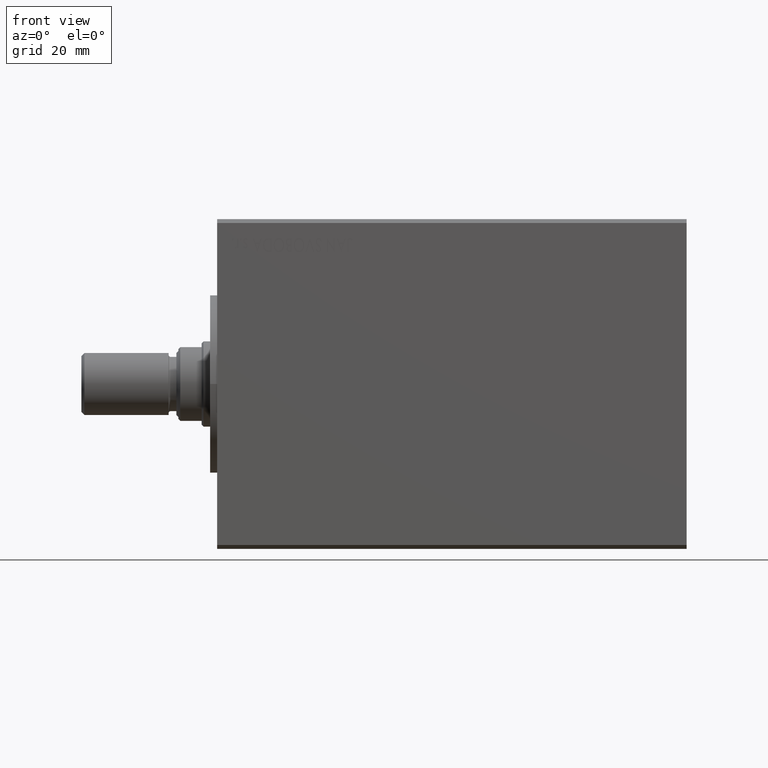
[diagram: clean part render]
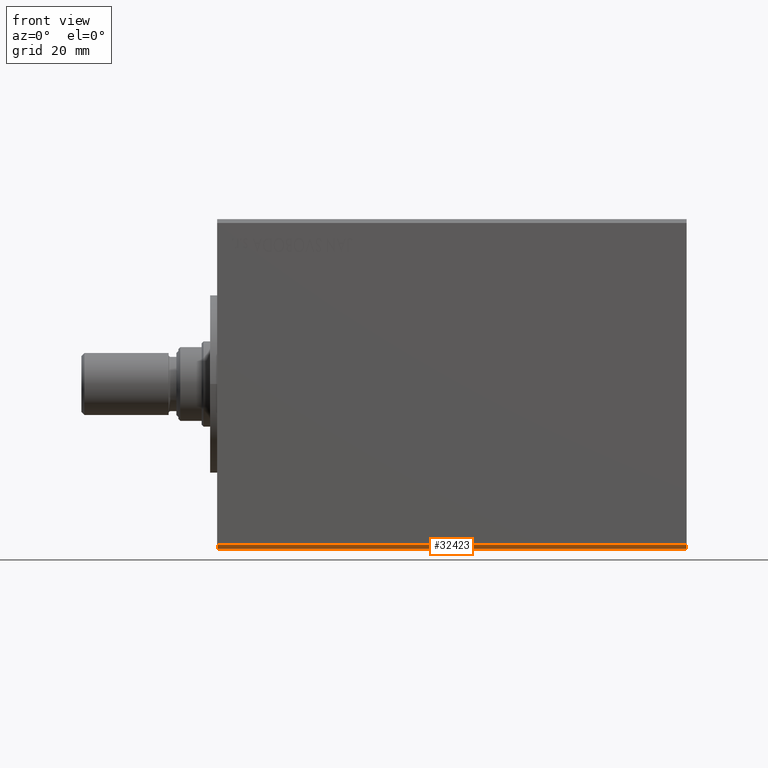
[diagram: same view with one face highlighted and labeled with its STEP entity id]
A machine part, front view. The second image highlights one B-rep face of the part: STEP entity #32423.
In plain terms, the highlighted planar face has unit normal (0, 0.7071, 0.7071).
Its self-contained STEP definition (entity closure, byte-faithful):
#576 = ORIENTED_EDGE ( 'NONE', *, *, #42209, .F. ) ;
#3766 = EDGE_CURVE ( 'NONE', #18172, #11814, #8934, .T. ) ;
#6875 = DIRECTION ( 'NONE',  ( -1.000000000000000000, -0.000000000000000000, -0.000000000000000000 ) ) ;
#8934 = LINE ( 'NONE', #25341, #31170 ) ;
#9016 = DIRECTION ( 'NONE',  ( 0.000000000000000000, 0.7071067811865451302, -0.7071067811865500152 ) ) ;
#9418 = EDGE_CURVE ( 'NONE', #23262, #18172, #36767, .T. ) ;
#9848 = VECTOR ( 'NONE', #28522, 1000.000000000000000 ) ;
#11814 = VERTEX_POINT ( 'NONE', #34743 ) ;
#12155 = LINE ( 'NONE', #29220, #32289 ) ;
#13847 = DIRECTION ( 'NONE',  ( -0.000000000000000000, 0.7071067811865500152, 0.7071067811865451302 ) ) ;
#14288 = PLANE ( 'NONE',  #31282 ) ;
#14882 = EDGE_CURVE ( 'NONE', #31658, #11814, #25380, .T. ) ;
#18172 = VERTEX_POINT ( 'NONE', #30314 ) ;
#21358 = CARTESIAN_POINT ( 'NONE',  ( 121.0000000000000000, -30.50000000000000711, -42.50000000000000711 ) ) ;
#21458 = DIRECTION ( 'NONE',  ( 0.000000000000000000, -0.7071067811865451302, 0.7071067811865500152 ) ) ;
#22579 = ORIENTED_EDGE ( 'NONE', *, *, #14882, .F. ) ;
#22609 = VECTOR ( 'NONE', #6875, 1000.000000000000000 ) ;
#23262 = VERTEX_POINT ( 'NONE', #31737 ) ;
#24441 = ORIENTED_EDGE ( 'NONE', *, *, #3766, .T. ) ;
#25341 = CARTESIAN_POINT ( 'NONE',  ( 0.000000000000000000, -31.50000000000000000, -41.50000000000000711 ) ) ;
#25380 = LINE ( 'NONE', #21358, #9848 ) ;
#26333 = CARTESIAN_POINT ( 'NONE',  ( 121.0000000000000000, -30.50000000000000711, -42.50000000000000711 ) ) ;
#27764 = FACE_OUTER_BOUND ( 'NONE', #32072, .T. ) ;
#28522 = DIRECTION ( 'NONE',  ( -1.000000000000000000, -0.000000000000000000, -0.000000000000000000 ) ) ;
#29220 = CARTESIAN_POINT ( 'NONE',  ( 121.0000000000000000, -31.50000000000000000, -41.50000000000000711 ) ) ;
#30076 = ORIENTED_EDGE ( 'NONE', *, *, #9418, .T. ) ;
#30314 = CARTESIAN_POINT ( 'NONE',  ( 0.000000000000000000, -31.50000000000000000, -41.50000000000000711 ) ) ;
#31170 = VECTOR ( 'NONE', #42632, 1000.000000000000114 ) ;
#31282 = AXIS2_PLACEMENT_3D ( 'NONE', #34712, #13847, #21458 ) ;
#31658 = VERTEX_POINT ( 'NONE', #26333 ) ;
#31737 = CARTESIAN_POINT ( 'NONE',  ( 121.0000000000000000, -31.50000000000000000, -41.50000000000000711 ) ) ;
#32072 = EDGE_LOOP ( 'NONE', ( #24441, #22579, #576, #30076 ) ) ;
#32289 = VECTOR ( 'NONE', #9016, 1000.000000000000114 ) ;
#32423 = ADVANCED_FACE ( 'NONE', ( #27764 ), #14288, .F. ) ;
#34712 = CARTESIAN_POINT ( 'NONE',  ( 121.0000000000000000, -31.50000000000000000, -41.50000000000000711 ) ) ;
#34743 = CARTESIAN_POINT ( 'NONE',  ( 0.000000000000000000, -30.50000000000000711, -42.50000000000000711 ) ) ;
#36767 = LINE ( 'NONE', #37214, #22609 ) ;
#37214 = CARTESIAN_POINT ( 'NONE',  ( 121.0000000000000000, -31.50000000000000000, -41.50000000000000711 ) ) ;
#42209 = EDGE_CURVE ( 'NONE', #23262, #31658, #12155, .T. ) ;
#42632 = DIRECTION ( 'NONE',  ( 0.000000000000000000, 0.7071067811865451302, -0.7071067811865500152 ) ) ;